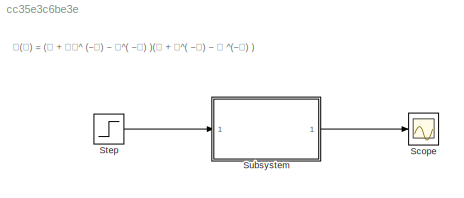
MODEL slx_cc35e3c6be3e
KIND model
CONFIG AbsTol = auto
CONFIG EnableMultiTasking = off
CONFIG FixedStep = auto
CONFIG MaxStep = auto
CONFIG MinStep = auto
CONFIG RelTol = 1e-3
CONFIG SampleTimeConstraint = Unconstrained
CONFIG SolverName = VariableStepAuto
CONFIG StartTime = 0.0
CONFIG StopTime = 10.0
BLOCK [Scope] Scope
  Floating = off
  NumInputPorts = 1
  Ports = [1]
  ScopeSpecificationString = Simulink.scopes.TimeScopeBlockCfg('CurrentConfiguration', extmgr.ConfigurationSet(extmgr.Configuration('Core','General UI',true),extmgr.Configuration('Core','Source UI',true),extmgr.Configuration('Sources','WiredSimulink',true),extmgr.Configuration('Visuals','Time Domain',true,'SerializedDisplays',{struct('MinYLimReal','-1.75','MaxYLimReal','5.75','YLabelReal','','MinYLimMag','0.00000','MaxYLimMag...<+1311ch>
BLOCK [Step] Step
  SampleTime = 0
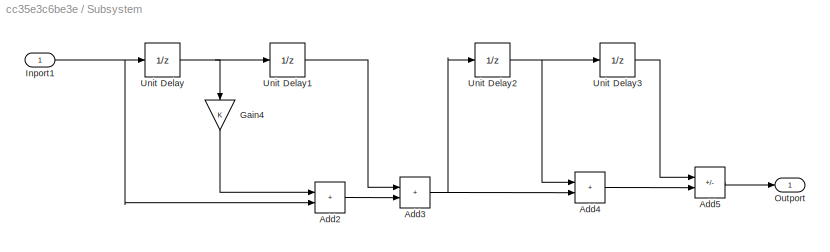
BLOCK [SubSystem] Subsystem
  Ports = [1, 1]
  RequestExecContextInheritance = off
BLOCK [Sum] Subsystem/Add2
  IconShape = rectangular
  Ports = [2, 1]
BLOCK [Sum] Subsystem/Add3
  IconShape = rectangular
  Ports = [2, 1]
BLOCK [Sum] Subsystem/Add4
  IconShape = rectangular
  Ports = [2, 1]
BLOCK [Sum] Subsystem/Add5
  IconShape = rectangular
  Inputs = -+
  Ports = [2, 1]
BLOCK [Gain] Subsystem/Gain4
  NameLocation = left
BLOCK [Inport] Subsystem/Inport1
BLOCK [Outport] Subsystem/Outport
BLOCK [UnitDelay] Subsystem/Unit Delay
  HasFrameUpgradeWarning = on
  SampleTime = -1
BLOCK [UnitDelay] Subsystem/Unit Delay1
  HasFrameUpgradeWarning = on
  SampleTime = -1
BLOCK [UnitDelay] Subsystem/Unit Delay2
  HasFrameUpgradeWarning = on
  SampleTime = -1
BLOCK [UnitDelay] Subsystem/Unit Delay3
  HasFrameUpgradeWarning = on
  SampleTime = -1
ANNOTATION (root): 𝐇(𝐳) = (𝟏 + 𝟐𝐳^ (−𝟏) − 𝐳^( −𝟐) )(𝟏 + 𝐳^( −𝟏) − 𝐳 ^(−𝟐) )
LINE Step:1 -> Subsystem:1
LINE Subsystem/Add2:1 -> Subsystem/Add3:2
NET Subsystem/Add3:1 -> Subsystem/Add4:2, Subsystem/Unit Delay2:1
LINE Subsystem/Add4:1 -> Subsystem/Add5:2
LINE Subsystem/Add5:1 -> Subsystem/Outport:1
LINE Subsystem/Gain4:1 -> Subsystem/Add2:1
NET Subsystem/Inport1:1 -> Subsystem/Add2:2, Subsystem/Unit Delay:1
LINE Subsystem/Unit Delay1:1 -> Subsystem/Add3:1
NET Subsystem/Unit Delay2:1 -> Subsystem/Add4:1, Subsystem/Unit Delay3:1
LINE Subsystem/Unit Delay3:1 -> Subsystem/Add5:1
NET Subsystem/Unit Delay:1 -> Subsystem/Gain4:1, Subsystem/Unit Delay1:1
LINE Subsystem:1 -> Scope:1
note: NET lines group one-source signal fan-out (src -> all destinations, sorted); 1:1 wires keep LINE
